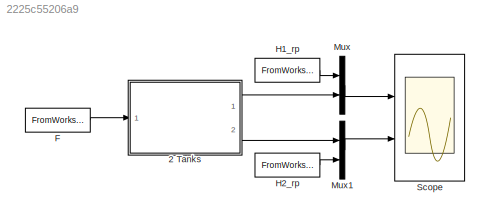
MODEL slx_2225c55206a9
KIND model
CONFIG AbsTol = auto
CONFIG EnableMultiTasking = off
CONFIG FixedStep = dt
CONFIG MaxStep = auto
CONFIG MinStep = auto
CONFIG RelTol = 1e-3
CONFIG SampleTimeConstraint = Unconstrained
CONFIG Solver = FixedStepAuto
CONFIG SolverName = FixedStepAuto
CONFIG StartTime = 0.0
CONFIG StopTime = tfinal
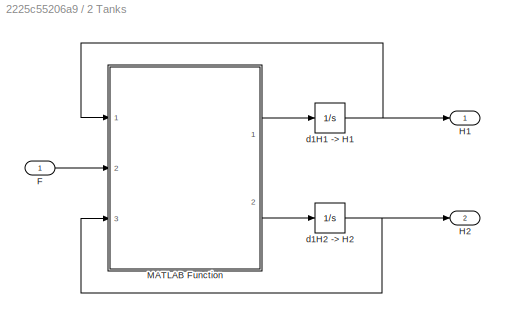
BLOCK [SubSystem] 2 Tanks
  Ports = [1, 2]
  RequestExecContextInheritance = off
BLOCK [Inport] 2 Tanks/F
  IconDisplay = Port number
BLOCK [Outport] 2 Tanks/H1
  IconDisplay = Port number
BLOCK [Outport] 2 Tanks/H2
  IconDisplay = Port number
  Port = 2
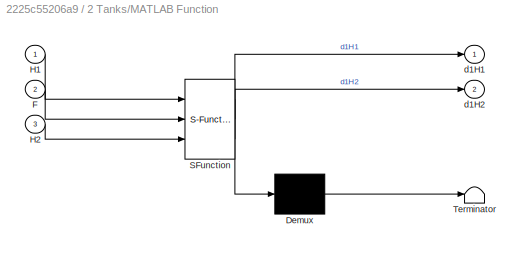
BLOCK [SubSystem] 2 Tanks/MATLAB Function
  ErrorFcn = Stateflow.Translate.translate
  PermitHierarchicalResolution = ExplicitOnly
  Ports = [3, 2]
  RequestExecContextInheritance = off
  SFBlockType = MATLAB Function
  TreatAsAtomicUnit = on
BLOCK [Demux] 2 Tanks/MATLAB Function/ Demux 
  Outputs = 1
  Ports = [1, 1]
BLOCK [S-Function] 2 Tanks/MATLAB Function/ SFunction 
  EnableBusSupport = on
  FunctionName = sf_sfun
  Parameters = a1,a2,a3,a4
  PortCounts = [3 3]
  Ports = [3, 3]
  SFcnIsStateOwnerBlock = off
  SFunctionDeploymentMode = off
  Tag = Stateflow S-Function TwoTanks_NL_2018a 2
BLOCK [Terminator] 2 Tanks/MATLAB Function/ Terminator 
BLOCK [Inport] 2 Tanks/MATLAB Function/F
  IconDisplay = Port number
  Port = 2
BLOCK [Inport] 2 Tanks/MATLAB Function/H1
  IconDisplay = Port number
BLOCK [Inport] 2 Tanks/MATLAB Function/H2
  IconDisplay = Port number
  Port = 3
BLOCK [Outport] 2 Tanks/MATLAB Function/d1H1
  IconDisplay = Port number
BLOCK [Outport] 2 Tanks/MATLAB Function/d1H2
  IconDisplay = Port number
  Port = 2
BLOCK [Integrator] 2 Tanks/d1H1 -> H1
  InitialCondition = h10
  LimitOutput = on
  LowerSaturationLimit = 0
  Ports = [1, 1]
BLOCK [Integrator] 2 Tanks/d1H2 -> H2
  InitialCondition = h20
  LimitOutput = on
  LowerSaturationLimit = 0
  Ports = [1, 1]
BLOCK [FromWorkspace] F
  OutputAfterFinalValue = Holding final value
  SampleTime = 0
  VariableName = [t' F_rp']
  ZeroCross = on
BLOCK [FromWorkspace] H1_rp
  OutputAfterFinalValue = Holding final value
  SampleTime = 0
  VariableName = [t' H1_rp']
  ZeroCross = on
BLOCK [FromWorkspace] H2_rp
  OutputAfterFinalValue = Holding final value
  SampleTime = 0
  VariableName = [t' H2_rp']
  ZeroCross = on
BLOCK [Mux] Mux
  DisplayOption = bar
  Inputs = 2
  Ports = [2, 1]
BLOCK [Mux] Mux1
  DisplayOption = bar
  Inputs = 2
  Ports = [2, 1]
BLOCK [Scope] Scope
  Floating = off
  NumInputPorts = 2
  Ports = [2]
  ScopeSpecificationString = Simulink.scopes.TimeScopeBlockCfg('CurrentConfiguration', extmgr.ConfigurationSet(extmgr.Configuration('Core','General UI',true),extmgr.Configuration('Core','Source UI',true),extmgr.Configuration('Sources','WiredSimulink',true),extmgr.Configuration('Visuals','Time Domain',true,'SerializedDisplays',{struct('MinYLimReal','0.22852','MaxYLimReal','0.44336','YLabelReal','','MinYLimMag','0.22852','MaxYL...<+1983ch>
LINE 2 Tanks/F:1 -> 2 Tanks/MATLAB Function:2
LINE 2 Tanks/MATLAB Function:1 -> 2 Tanks/d1H1 -> H1:1
LINE 2 Tanks/MATLAB Function:2 -> 2 Tanks/d1H2 -> H2:1
NET 2 Tanks/d1H1 -> H1:1 -> 2 Tanks/H1:1, 2 Tanks/MATLAB Function:1
NET 2 Tanks/d1H2 -> H2:1 -> 2 Tanks/H2:1, 2 Tanks/MATLAB Function:3
LINE 2 Tanks:1 -> Mux:2
LINE 2 Tanks:2 -> Mux1:1
LINE F:1 -> 2 Tanks:1
LINE H1_rp:1 -> Mux:1
LINE H2_rp:1 -> Mux1:2
LINE Mux1:1 -> Scope:2
LINE Mux:1 -> Scope:1
note: NET lines group one-source signal fan-out (src -> all destinations, sorted); 1:1 wires keep LINE
CHART 2 Tanks/MATLAB Function states=1 transitions=1
  STATE_LABEL 'eML_blk_kernel()'
  STATE_LABEL 'SCRIPT:\nfunction [d1H1, d1H2] = TwoTanks(H1, F, H2, a1, a2, a3, a4)\n  \n  % Sistema Dinâmico \n    d1H1 = a1*F - a2*sqrt(H1);\n    \n    d1H2 = a3*(sqrt(H1)/(H2^2)) - a4*(1/(H2^1.5));\n'
